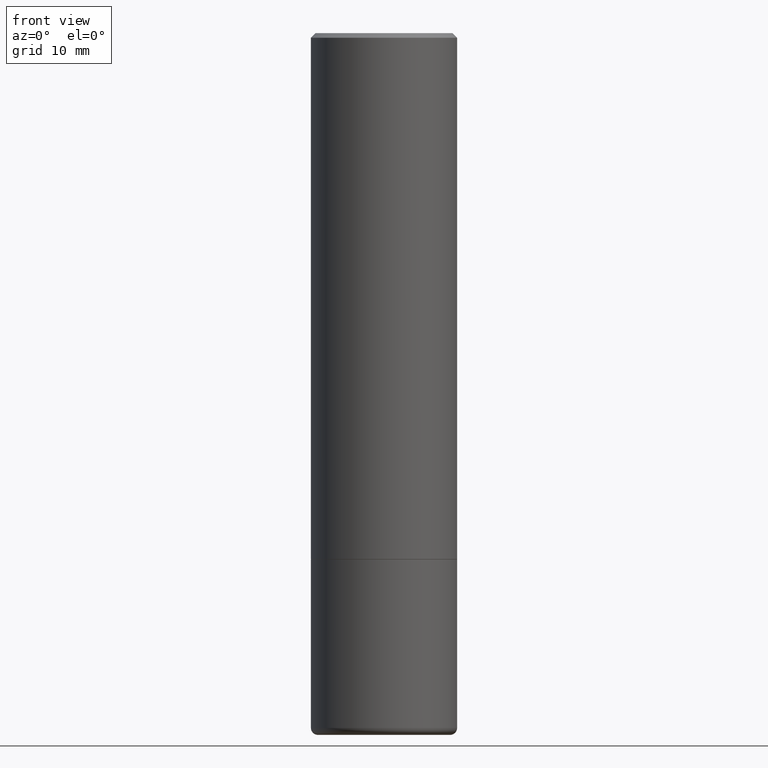
[diagram: clean part render]
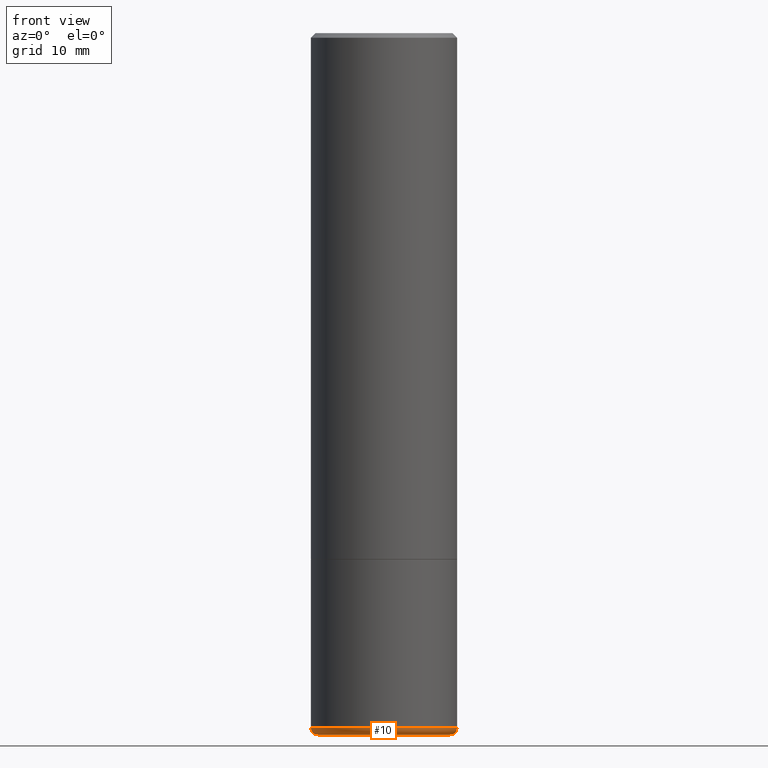
[diagram: same view with one face highlighted and labeled with its STEP entity id]
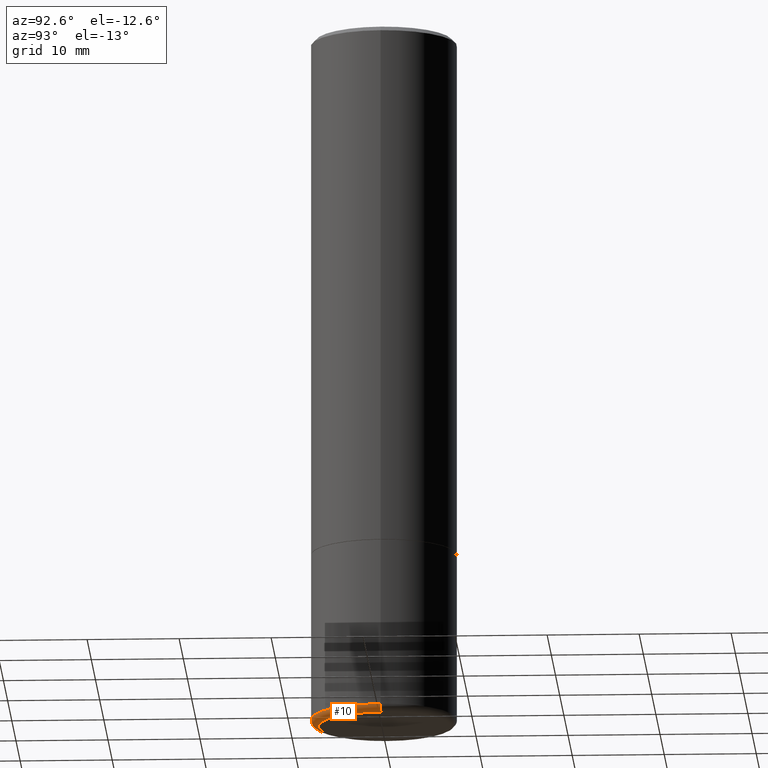
[diagram: same view with one face highlighted and labeled with its STEP entity id]
A machine part, front view. The second image highlights one B-rep face of the part: STEP entity #10.
A second angle (auxiliary view) of the same face is appended — the face is thin or edge-on in the first view.
In plain terms, the highlighted toroidal blend (fillet) surface has major radius 7.1755 mm and minor (blend) radius 0.762 mm.
Its self-contained STEP definition (entity closure, byte-faithful):
#10 = ADVANCED_FACE ( 'NONE', ( #375 ), #438, .T. ) ;
#21 = DIRECTION ( 'NONE',  ( 1.000000000000000000, -6.982962677686269077E-15, 0.000000000000000000 ) ) ;
#26 = DIRECTION ( 'NONE',  ( 1.000000000000000000, -6.982962677686270655E-15, 0.000000000000000000 ) ) ;
#65 = VERTEX_POINT ( 'NONE', #273 ) ;
#72 = VERTEX_POINT ( 'NONE', #421 ) ;
#82 = CARTESIAN_POINT ( 'NONE',  ( 0.2819764278068823682, -1.240892678183174612E-14, -2.999995430854692113 ) ) ;
#117 = DIRECTION ( 'NONE',  ( 7.105427357601001859E-15, 1.000000000000000000, -3.491481338843145583E-15 ) ) ;
#120 = CIRCLE ( 'NONE', #253, 0.2819764278068817576 ) ;
#126 = CARTESIAN_POINT ( 'NONE',  ( 0.3125000000000000000, -1.255187541314110291E-14, -2.970000000000000195 ) ) ;
#137 = AXIS2_PLACEMENT_3D ( 'NONE', #435, #228, #26 ) ;
#153 = AXIS2_PLACEMENT_3D ( 'NONE', #320, #394, #21 ) ;
#161 = DIRECTION ( 'NONE',  ( -2.445468806185136597E-29, 3.491481338843145583E-15, 1.000000000000000000 ) ) ;
#179 = EDGE_CURVE ( 'NONE', #72, #430, #366, .T. ) ;
#182 = ORIENTED_EDGE ( 'NONE', *, *, #393, .T. ) ;
#193 = AXIS2_PLACEMENT_3D ( 'NONE', #221, #117, #257 ) ;
#195 = EDGE_CURVE ( 'NONE', #65, #72, #197, .T. ) ;
#197 = CIRCLE ( 'NONE', #193, 0.02999999999999998848 ) ;
#198 = DIRECTION ( 'NONE',  ( 1.000000000000000000, -6.982962677686267499E-15, 0.000000000000000000 ) ) ;
#217 = DIRECTION ( 'NONE',  ( 1.000000000000000000, -6.982962677686269077E-15, 4.883557194083114022E-29 ) ) ;
#221 = CARTESIAN_POINT ( 'NONE',  ( -0.2825000000000000289, -8.362416347841860148E-15, -2.970000000000000195 ) ) ;
#228 = DIRECTION ( 'NONE',  ( -6.982962677686266711E-15, -1.000000000000000000, 3.491481338843145583E-15 ) ) ;
#233 = ORIENTED_EDGE ( 'NONE', *, *, #179, .F. ) ;
#253 = AXIS2_PLACEMENT_3D ( 'NONE', #288, #161, #198 ) ;
#257 = DIRECTION ( 'NONE',  ( -1.000000000000000000, 7.105427357600993970E-15, 0.000000000000000000 ) ) ;
#266 = ORIENTED_EDGE ( 'NONE', *, *, #388, .T. ) ;
#268 = VERTEX_POINT ( 'NONE', #82 ) ;
#271 = CARTESIAN_POINT ( 'NONE',  ( 7.263042354369856275E-29, -1.036969957636414298E-14, -2.970000000000000195 ) ) ;
#273 = CARTESIAN_POINT ( 'NONE',  ( -0.2819764278068823682, -8.505397192081103649E-15, -2.999995430854692113 ) ) ;
#277 = EDGE_LOOP ( 'NONE', ( #332, #182, #266, #233 ) ) ;
#288 = CARTESIAN_POINT ( 'NONE',  ( 7.336395244853088111E-29, -1.047442806344385870E-14, -2.999995430854692113 ) ) ;
#320 = CARTESIAN_POINT ( 'NONE',  ( 7.263042354369856275E-29, -1.036969957636414298E-14, -2.970000000000000195 ) ) ;
#332 = ORIENTED_EDGE ( 'NONE', *, *, #195, .F. ) ;
#349 = AXIS2_PLACEMENT_3D ( 'NONE', #271, #380, #217 ) ;
#366 = CIRCLE ( 'NONE', #153, 0.3125000000000000000 ) ;
#369 = CIRCLE ( 'NONE', #137, 0.02999999999999998848 ) ;
#375 = FACE_OUTER_BOUND ( 'NONE', #277, .T. ) ;
#380 = DIRECTION ( 'NONE',  ( -2.445468806185136597E-29, 3.491481338843145583E-15, 1.000000000000000000 ) ) ;
#388 = EDGE_CURVE ( 'NONE', #268, #430, #369, .T. ) ;
#393 = EDGE_CURVE ( 'NONE', #65, #268, #120, .T. ) ;
#394 = DIRECTION ( 'NONE',  ( -2.445468806185136597E-29, 3.491481338843145583E-15, 1.000000000000000000 ) ) ;
#421 = CARTESIAN_POINT ( 'NONE',  ( -0.3125000000000000000, -8.149253527113829903E-15, -2.970000000000000195 ) ) ;
#430 = VERTEX_POINT ( 'NONE', #126 ) ;
#435 = CARTESIAN_POINT ( 'NONE',  ( 0.2825000000000000289, -1.234238653281051459E-14, -2.970000000000000195 ) ) ;
#438 = TOROIDAL_SURFACE ( 'NONE', #349, 0.2825000000000000289, 0.03000000000000001277 ) ;